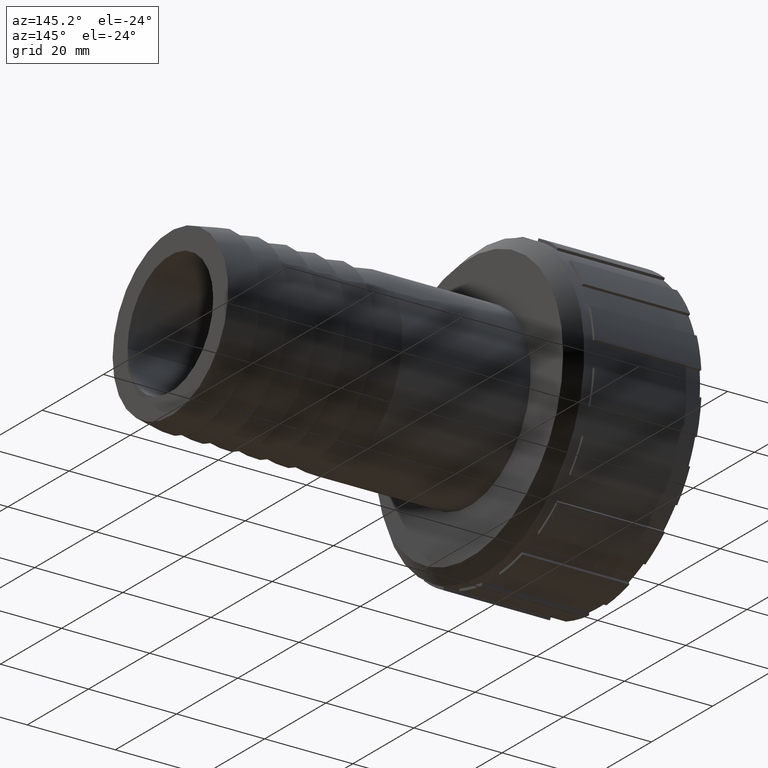
[diagram: clean part render]
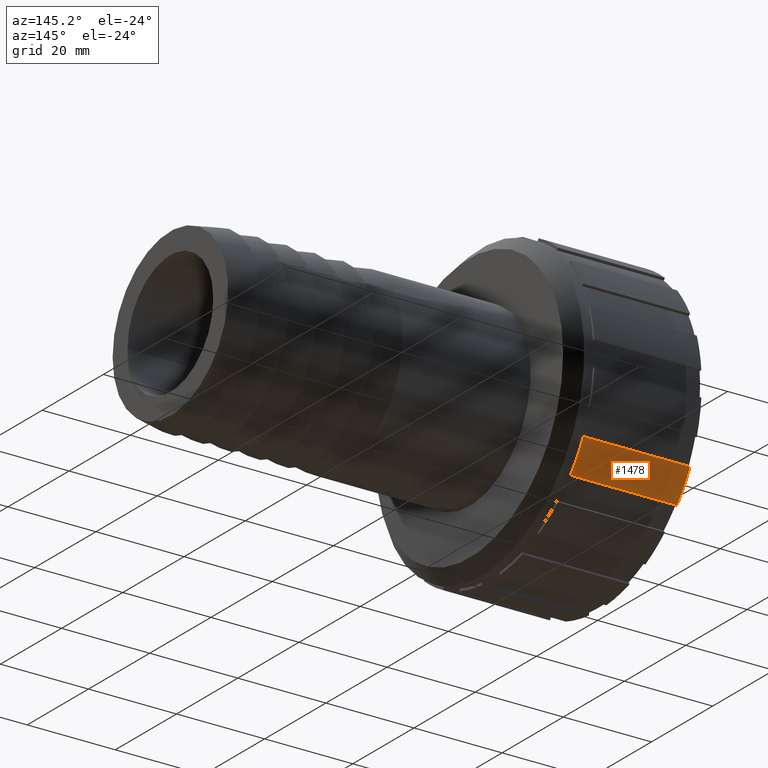
[diagram: same view with one face highlighted and labeled with its STEP entity id]
A machine part, auxiliary view. The second image highlights one B-rep face of the part: STEP entity #1478.
In plain terms, the highlighted cylindrical surface (partial cylindrical patch) has radius 33.9936 mm, axis along (-1, 0, 0).
Its self-contained STEP definition (entity closure, byte-faithful):
#27=CYLINDRICAL_SURFACE('',#1629,33.9936);
#75=CIRCLE('',#1556,33.9936);
#105=CIRCLE('',#1592,33.9936);
#197=FACE_OUTER_BOUND('',#282,.T.);
#282=EDGE_LOOP('',(#1216,#1217,#1218,#1219));
#410=LINE('',#2320,#538);
#416=LINE('',#2332,#544);
#538=VECTOR('',#1798,24.25);
#544=VECTOR('',#1806,24.25);
#665=VERTEX_POINT('',#2316);
#667=VERTEX_POINT('',#2319);
#670=VERTEX_POINT('',#2326);
#672=VERTEX_POINT('',#2330);
#813=EDGE_CURVE('',#667,#665,#410,.T.);
#819=EDGE_CURVE('',#670,#672,#416,.T.);
#871=EDGE_CURVE('',#670,#665,#75,.T.);
#902=EDGE_CURVE('',#672,#667,#105,.T.);
#1216=ORIENTED_EDGE('',*,*,#813,.T.);
#1217=ORIENTED_EDGE('',*,*,#871,.F.);
#1218=ORIENTED_EDGE('',*,*,#819,.T.);
#1219=ORIENTED_EDGE('',*,*,#902,.T.);
#1478=ADVANCED_FACE('',(#197),#27,.T.);
#1556=AXIS2_PLACEMENT_3D('',#2434,#1891,#1892);
#1592=AXIS2_PLACEMENT_3D('',#2474,#1964,#1965);
#1629=AXIS2_PLACEMENT_3D('',#2515,#2040,#2041);
#1798=DIRECTION('',(-1.,0.,0.));
#1806=DIRECTION('',(1.,0.,0.));
#1891=DIRECTION('center_axis',(-1.,0.,0.));
#1892=DIRECTION('ref_axis',(0.,0.,1.));
#1964=DIRECTION('center_axis',(-1.,0.,0.));
#1965=DIRECTION('ref_axis',(0.,0.,1.));
#2040=DIRECTION('center_axis',(-1.,0.,0.));
#2041=DIRECTION('ref_axis',(0.,-1.,0.));
#2316=CARTESIAN_POINT('',(0.,25.9565895913628,-21.9504054118723));
#2319=CARTESIAN_POINT('',(24.25,25.9565895913628,-21.9504054118723));
#2320=CARTESIAN_POINT('',(12.125,25.9565895913629,-21.9504054118723));
#2326=CARTESIAN_POINT('',(0.,30.2126870876685,-15.5807053724351));
#2330=CARTESIAN_POINT('',(24.25,30.2126870876685,-15.5807053724351));
#2332=CARTESIAN_POINT('',(12.125,30.2126870876685,-15.5807053724351));
#2434=CARTESIAN_POINT('Origin',(0.,0.,0.));
#2474=CARTESIAN_POINT('Origin',(24.25,0.,0.));
#2515=CARTESIAN_POINT('Origin',(12.125,0.,0.));